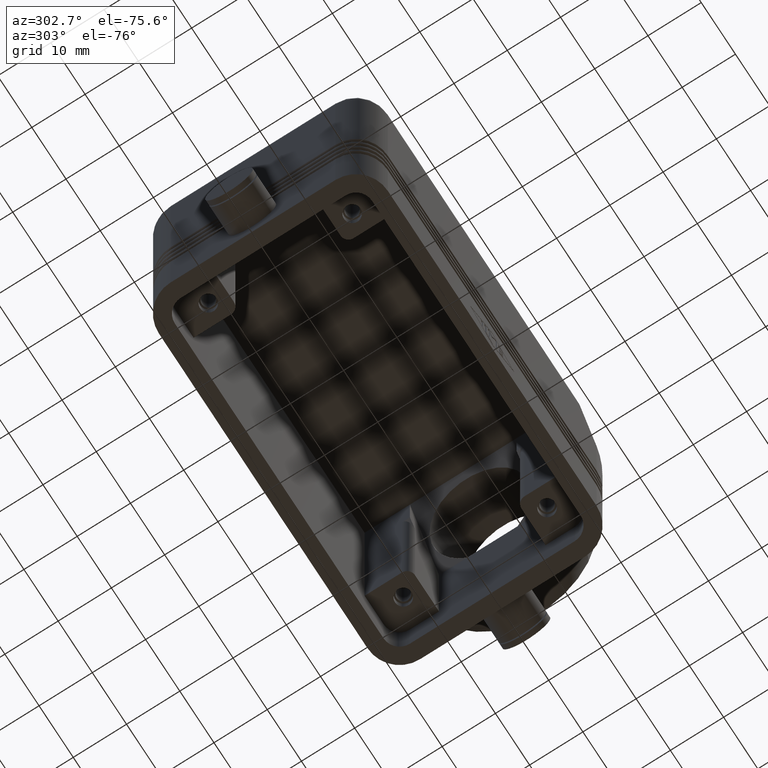
[diagram: clean part render]
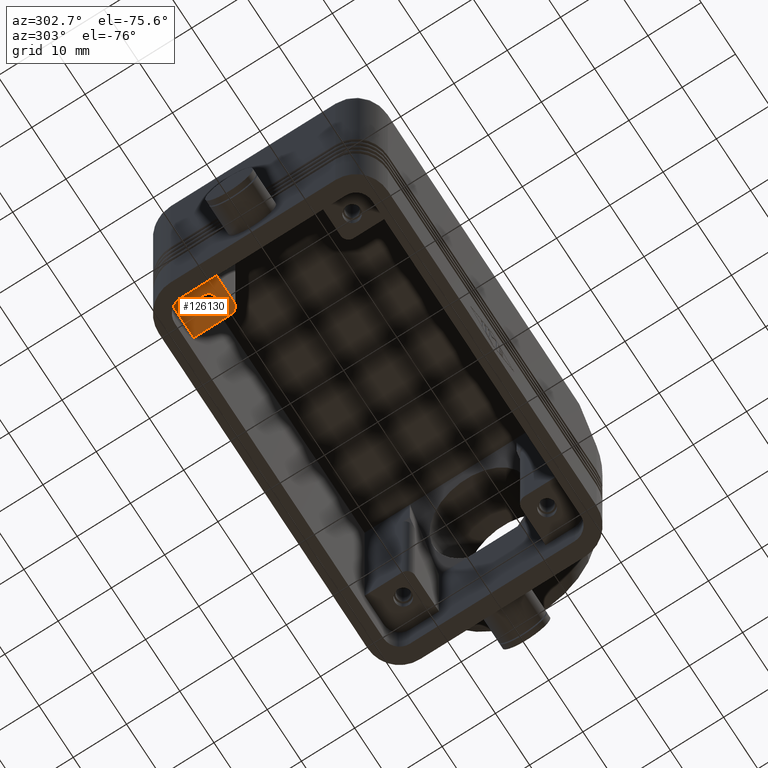
[diagram: same view with one face highlighted and labeled with its STEP entity id]
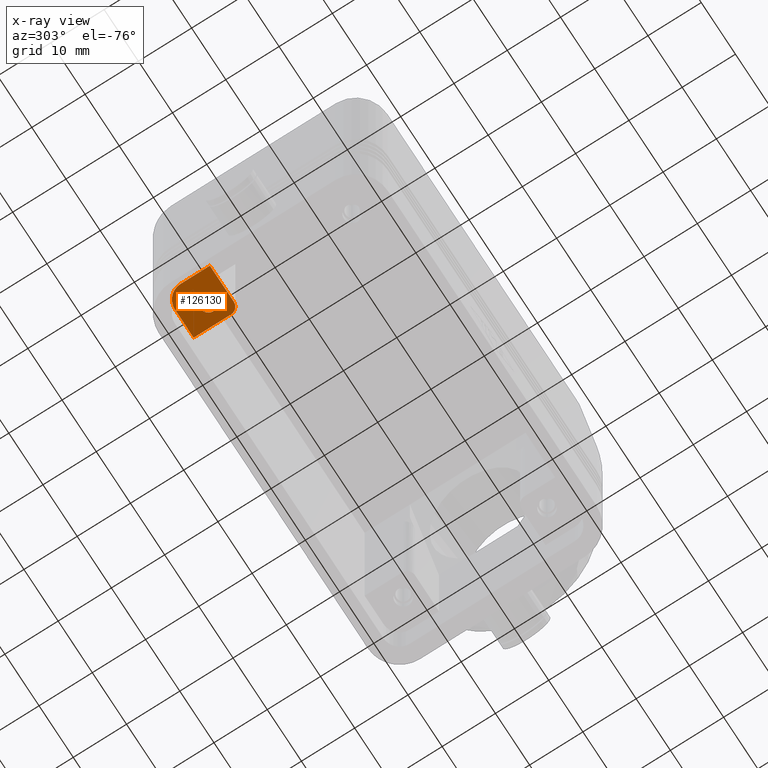
[diagram: x-ray of the same camera — body ghosted, the highlighted face saturated]
A machine part, auxiliary view. The second image highlights one B-rep face of the part: STEP entity #126130.
The next image is the same camera in x-ray: the body ghosted, the highlighted face saturated — about 0% of this face is hidden behind the body in this view.
In plain terms, the highlighted planar face has unit normal (0, 0, -1).
Its self-contained STEP definition (entity closure, byte-faithful):
#3200=CARTESIAN_POINT('',(-30.5,18.5,9.));
#3210=VERTEX_POINT('',#3200);
#3370=CARTESIAN_POINT('',(-33.5,15.5,9.));
#3380=VERTEX_POINT('',#3370);
#3410=CARTESIAN_POINT('',(-30.5,15.5,9.));
#3420=DIRECTION('',(-0.,-0.,1.));
#3430=DIRECTION('',(-1.,0.,-0.));
#3440=AXIS2_PLACEMENT_3D('',#3410,#3420,#3430);
#3450=CIRCLE('',#3440,2.99999999999989);
#3460=EDGE_CURVE('',#3210,#3380,#3450,.T.);
#5770=CARTESIAN_POINT('',(-25.,11.5,9.));
#5780=VERTEX_POINT('',#5770);
#5830=CARTESIAN_POINT('',(-26.5,11.5,9.));
#5840=DIRECTION('',(-0.,-0.,1.));
#5850=DIRECTION('',(-1.,0.,0.));
#5860=AXIS2_PLACEMENT_3D('',#5830,#5840,#5850);
#5870=CIRCLE('',#5860,1.50000000000001);
#5880=CARTESIAN_POINT('',(-26.5,10.,9.));
#5890=VERTEX_POINT('',#5880);
#5900=EDGE_CURVE('',#5890,#5780,#5870,.T.);
#82230=CARTESIAN_POINT('',(0.,10.,9.));
#82240=DIRECTION('',(-1.,-0.,0.));
#82250=VECTOR('',#82240,1.);
#82260=LINE('',#82230,#82250);
#82270=CARTESIAN_POINT('',(-33.5,10.,9.));
#82280=VERTEX_POINT('',#82270);
#82290=EDGE_CURVE('',#5890,#82280,#82260,.T.);
#103160=CARTESIAN_POINT('',(-33.5,0.,9.));
#103170=DIRECTION('',(0.,-1.,0.));
#103180=VECTOR('',#103170,1.);
#103190=LINE('',#103160,#103180);
#103200=EDGE_CURVE('',#3380,#82280,#103190,.T.);
#121570=CARTESIAN_POINT('',(-26.95,13.5,9.));
#121580=VERTEX_POINT('',#121570);
#121610=CARTESIAN_POINT('',(-28.5,13.5,9.));
#121620=DIRECTION('',(-0.,-0.,1.));
#121630=DIRECTION('',(-1.,0.,-0.));
#121640=AXIS2_PLACEMENT_3D('',#121610,#121620,#121630);
#121650=CIRCLE('',#121640,1.55);
#121660=CARTESIAN_POINT('',(-30.05,13.5,9.));
#121670=VERTEX_POINT('',#121660);
#121680=EDGE_CURVE('',#121580,#121670,#121650,.T.);
#122300=CARTESIAN_POINT('',(0.,18.5,9.));
#122310=DIRECTION('',(-1.,-0.,0.));
#122320=VECTOR('',#122310,1.);
#122330=LINE('',#122300,#122320);
#122340=CARTESIAN_POINT('',(-25.,18.5,9.));
#122350=VERTEX_POINT('',#122340);
#122360=EDGE_CURVE('',#122350,#3210,#122330,.T.);
#125900=CARTESIAN_POINT('',(-24.15,9.15,9.));
#125910=DIRECTION('',(0.,0.,-1.));
#125920=DIRECTION('',(-1.,0.,-0.));
#125930=AXIS2_PLACEMENT_3D('',#125900,#125910,#125920);
#125940=PLANE('',#125930);
#125950=CARTESIAN_POINT('',(-25.,0.,9.));
#125960=DIRECTION('',(0.,-1.,0.));
#125970=VECTOR('',#125960,1.);
#125980=LINE('',#125950,#125970);
#125990=EDGE_CURVE('',#122350,#5780,#125980,.T.);
#126000=ORIENTED_EDGE('',*,*,#125990,.T.);
#126010=ORIENTED_EDGE('',*,*,#122360,.F.);
#126020=ORIENTED_EDGE('',*,*,#3460,.F.);
#126030=ORIENTED_EDGE('',*,*,#103200,.F.);
#126040=ORIENTED_EDGE('',*,*,#82290,.T.);
#126050=ORIENTED_EDGE('',*,*,#5900,.F.);
#126060=EDGE_LOOP('',(#126050,#126040,#126030,#126020,#126010,#126000));
#126070=FACE_OUTER_BOUND('',#126060,.T.);
#126080=EDGE_CURVE('',#121670,#121580,#121650,.T.);
#126090=ORIENTED_EDGE('',*,*,#126080,.T.);
#126100=ORIENTED_EDGE('',*,*,#121680,.T.);
#126110=EDGE_LOOP('',(#126100,#126090));
#126120=FACE_BOUND('',#126110,.T.);
#126130=ADVANCED_FACE('',(#126070,#126120),#125940,.T.);